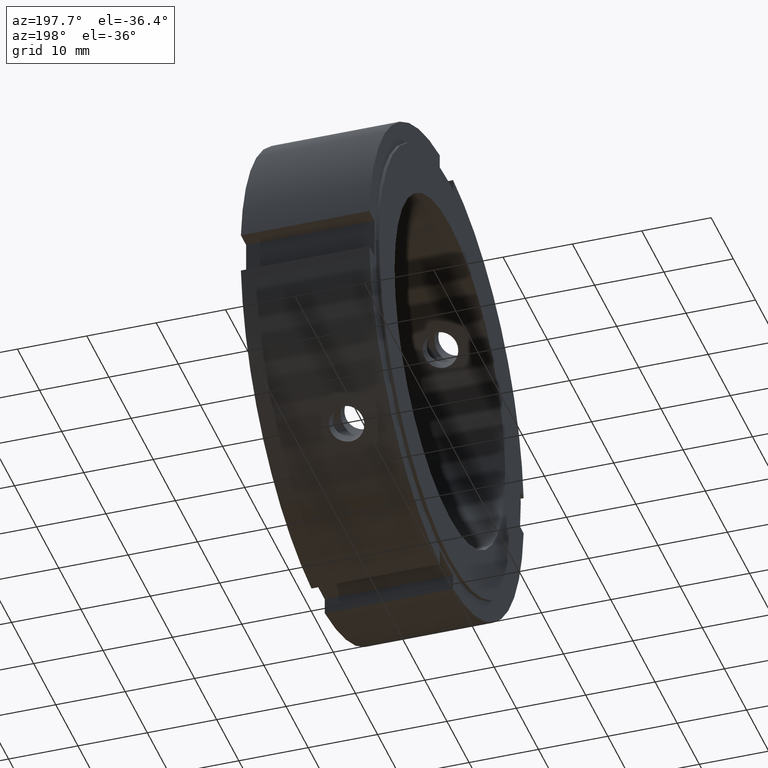
[diagram: clean part render]
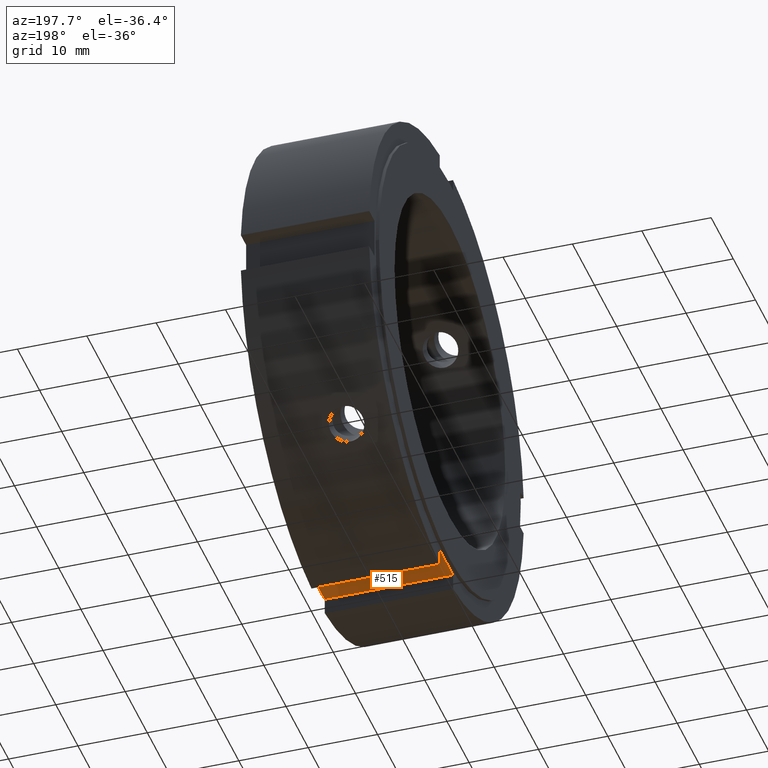
[diagram: same view with one face highlighted and labeled with its STEP entity id]
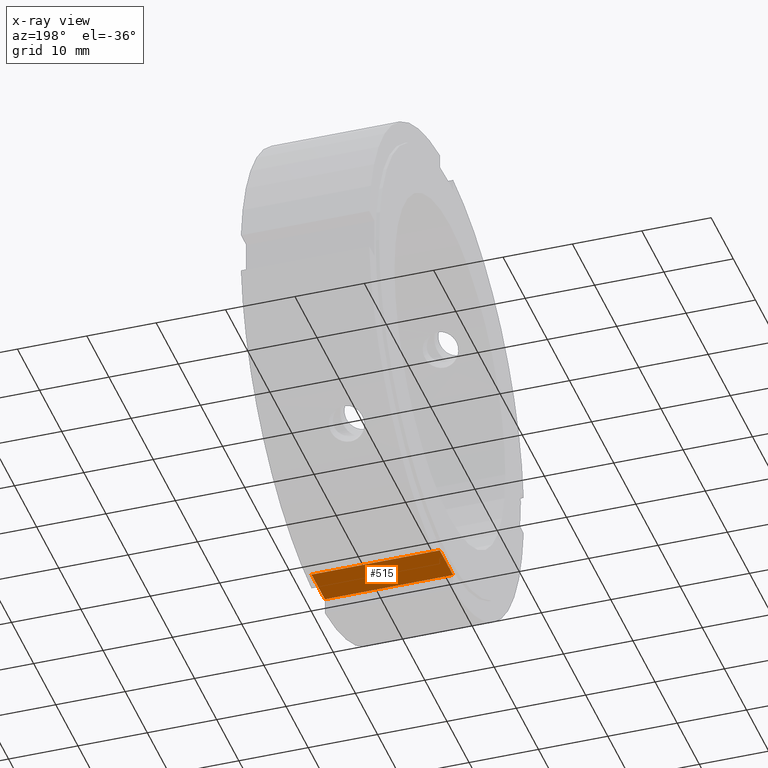
[diagram: x-ray of the same camera — body ghosted, the highlighted face saturated]
A machine part, auxiliary view. The second image highlights one B-rep face of the part: STEP entity #515.
The next image is the same camera in x-ray: the body ghosted, the highlighted face saturated — about 0% of this face is hidden behind the body in this view.
In plain terms, the highlighted planar face has unit normal (0, 0, 1).
Its self-contained STEP definition (entity closure, byte-faithful):
#419=CARTESIAN_POINT('',(0.499999999999994,-3.000000000000004,-32.5));
#420=VERTEX_POINT('',#419);
#429=CARTESIAN_POINT('',(18.999999999999989,-3.000000000000004,-32.5));
#430=VERTEX_POINT('',#429);
#431=CARTESIAN_POINT('',(18.999999999999989,-3.000000000000004,-32.5));
#432=DIRECTION('',(-1.0,0.0,0.0));
#433=VECTOR('',#432,18.499999999999996);
#434=LINE('',#431,#433);
#435=EDGE_CURVE('',#430,#420,#434,.T.);
#461=CARTESIAN_POINT('',(0.499999999999994,2.999999999999992,-32.5));
#462=VERTEX_POINT('',#461);
#477=CARTESIAN_POINT('',(18.999999999999989,2.999999999999992,-32.5));
#478=VERTEX_POINT('',#477);
#485=CARTESIAN_POINT('',(18.999999999999989,2.999999999999992,-32.5));
#486=DIRECTION('',(-1.0,0.0,0.0));
#487=VECTOR('',#486,18.499999999999996);
#488=LINE('',#485,#487);
#489=EDGE_CURVE('',#478,#462,#488,.T.);
#494=CARTESIAN_POINT('',(18.999999999999989,2.999999999999992,-32.5));
#495=DIRECTION('',(0.0,0.0,1.0));
#496=DIRECTION('',(0.0,-1.0,0.0));
#497=AXIS2_PLACEMENT_3D('',#494,#495,#496);
#498=PLANE('',#497);
#499=CARTESIAN_POINT('',(0.499999999999994,2.999999999999991,-32.5));
#500=DIRECTION('',(0.0,-1.0,0.0));
#501=VECTOR('',#500,5.999999999999995);
#502=LINE('',#499,#501);
#503=EDGE_CURVE('',#462,#420,#502,.T.);
#504=ORIENTED_EDGE('',*,*,#503,.F.);
#505=ORIENTED_EDGE('',*,*,#489,.F.);
#506=CARTESIAN_POINT('',(18.999999999999989,-3.000000000000007,-32.499999999999993));
#507=DIRECTION('',(0.0,1.0,0.0));
#508=VECTOR('',#507,5.999999999999996);
#509=LINE('',#506,#508);
#510=EDGE_CURVE('',#430,#478,#509,.T.);
#511=ORIENTED_EDGE('',*,*,#510,.F.);
#512=ORIENTED_EDGE('',*,*,#435,.T.);
#513=EDGE_LOOP('',(#504,#505,#511,#512));
#514=FACE_OUTER_BOUND('',#513,.T.);
#515=ADVANCED_FACE('',(#514),#498,.F.);